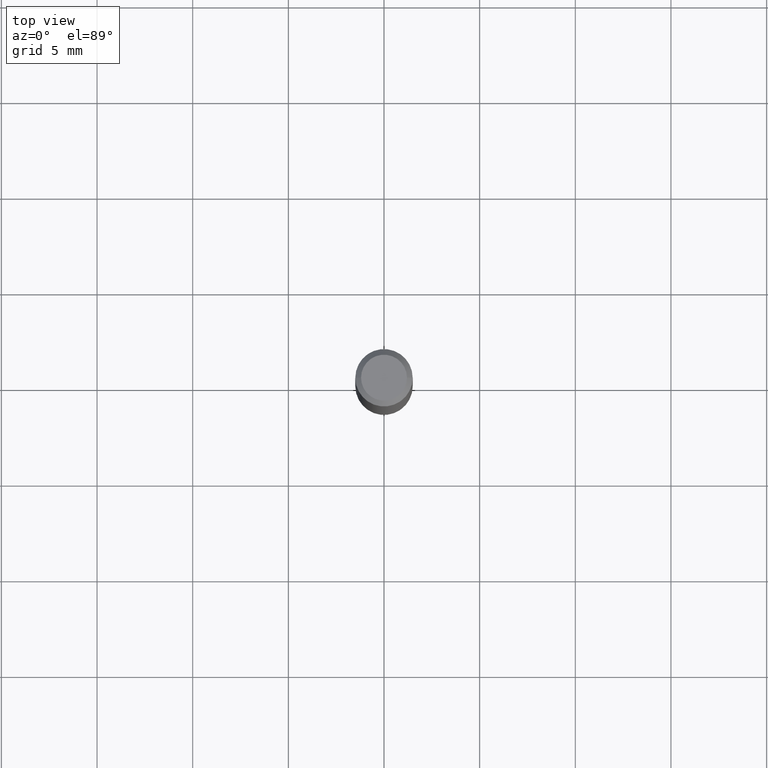
[diagram: clean part render]
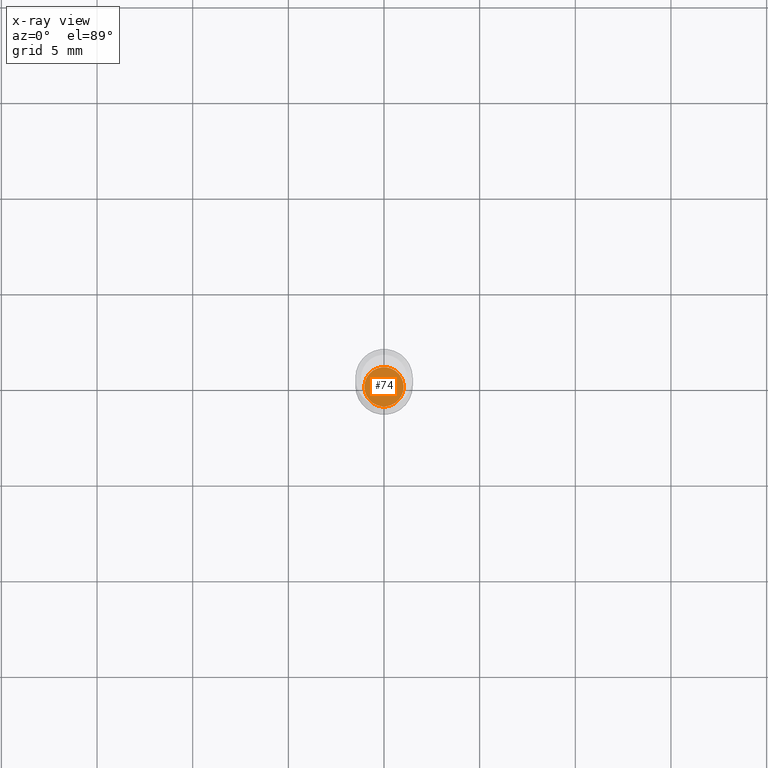
[diagram: x-ray — body ghosted, one internal face saturated and labeled with its STEP entity id]
A machine part, top view, then the same camera in x-ray: the body is ghosted and one INTERNAL B-rep face — a face not visible from any outside direction — is saturated and labeled: STEP entity #74.
In plain terms, the highlighted planar face has unit normal (-0, 0, 1).
Its self-contained STEP definition (entity closure, byte-faithful):
#13 = EDGE_CURVE ( 'NONE', #73, #399, #411, .T. ) ;
#43 = DIRECTION ( 'NONE',  ( -2.445468806185136597E-29, 3.491481338843145583E-15, 1.000000000000000000 ) ) ;
#45 = EDGE_CURVE ( 'NONE', #399, #73, #206, .T. ) ;
#62 = AXIS2_PLACEMENT_3D ( 'NONE', #370, #223, #408 ) ;
#73 = VERTEX_POINT ( 'NONE', #148 ) ;
#74 = ADVANCED_FACE ( 'NONE', ( #450 ), #110, .F. ) ;
#110 = PLANE ( 'NONE',  #62 ) ;
#135 = CARTESIAN_POINT ( 'NONE',  ( 0.04044999999999999984, -4.103887165676232306E-15, -1.094499999999999806 ) ) ;
#143 = CARTESIAN_POINT ( 'NONE',  ( 2.676565608369631794E-29, -3.821426325363822773E-15, -1.094499999999999806 ) ) ;
#148 = CARTESIAN_POINT ( 'NONE',  ( -0.04044999999999999984, -3.531362561574750752E-15, -1.094499999999999806 ) ) ;
#206 = CIRCLE ( 'NONE', #310, 0.04044999999999999984 ) ;
#222 = EDGE_LOOP ( 'NONE', ( #462, #489 ) ) ;
#223 = DIRECTION ( 'NONE',  ( -2.438088387897960049E-29, 3.491481338843145188E-15, 1.000000000000000000 ) ) ;
#231 = DIRECTION ( 'NONE',  ( 1.000000000000000000, -6.982962677686264344E-15, 0.000000000000000000 ) ) ;
#298 = CARTESIAN_POINT ( 'NONE',  ( 2.676565608369631794E-29, -3.821426325363822773E-15, -1.094499999999999806 ) ) ;
#310 = AXIS2_PLACEMENT_3D ( 'NONE', #143, #331, #339 ) ;
#331 = DIRECTION ( 'NONE',  ( -2.445468806185136597E-29, 3.491481338843145583E-15, 1.000000000000000000 ) ) ;
#339 = DIRECTION ( 'NONE',  ( 1.000000000000000000, -6.982962677686264344E-15, 0.000000000000000000 ) ) ;
#370 = CARTESIAN_POINT ( 'NONE',  ( 2.676565608369631794E-29, -3.821426325363822773E-15, -1.094499999999999806 ) ) ;
#374 = AXIS2_PLACEMENT_3D ( 'NONE', #298, #43, #231 ) ;
#399 = VERTEX_POINT ( 'NONE', #135 ) ;
#408 = DIRECTION ( 'NONE',  ( 1.000000000000000000, -6.982962677686265922E-15, 4.876176775795935793E-29 ) ) ;
#411 = CIRCLE ( 'NONE', #374, 0.04044999999999999984 ) ;
#450 = FACE_OUTER_BOUND ( 'NONE', #222, .T. ) ;
#462 = ORIENTED_EDGE ( 'NONE', *, *, #45, .F. ) ;
#489 = ORIENTED_EDGE ( 'NONE', *, *, #13, .F. ) ;